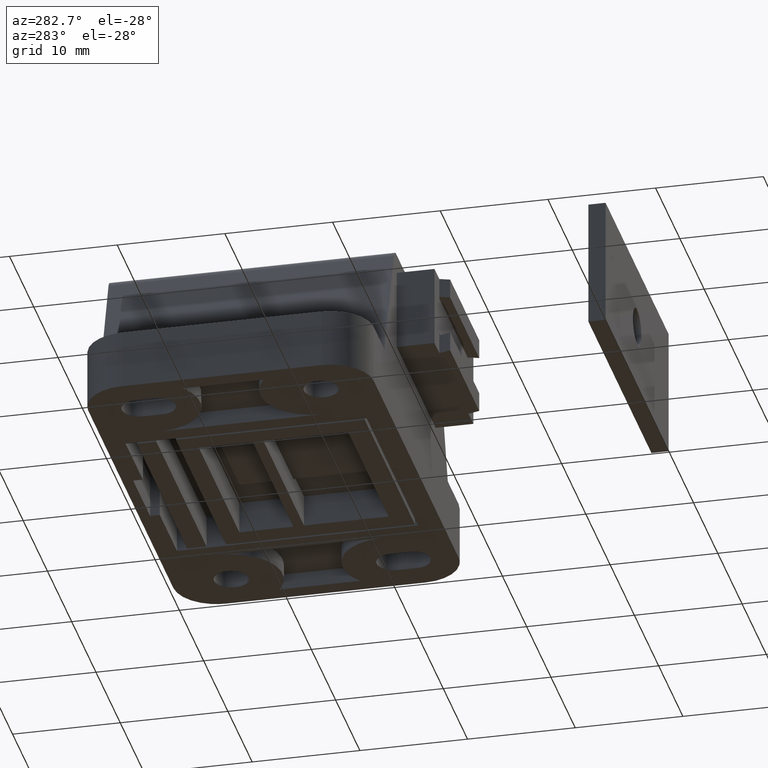
[diagram: clean part render]
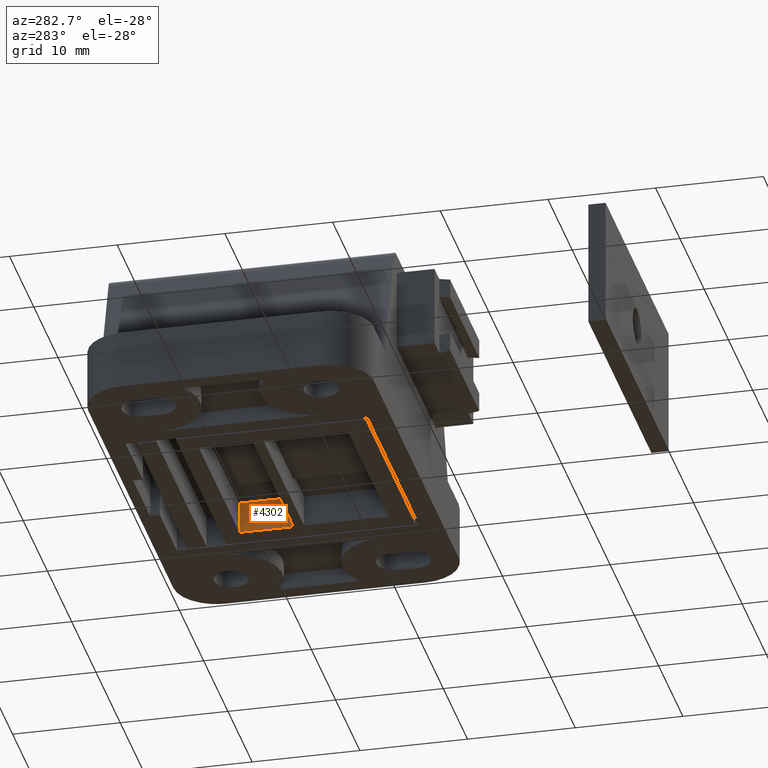
[diagram: same view with one face highlighted and labeled with its STEP entity id]
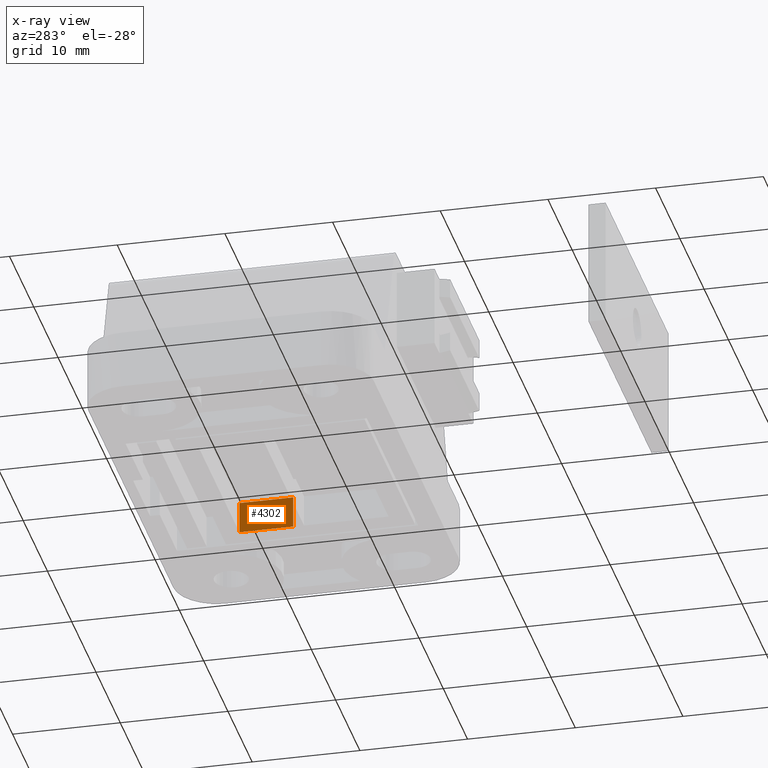
[diagram: x-ray of the same camera — body ghosted, the highlighted face saturated]
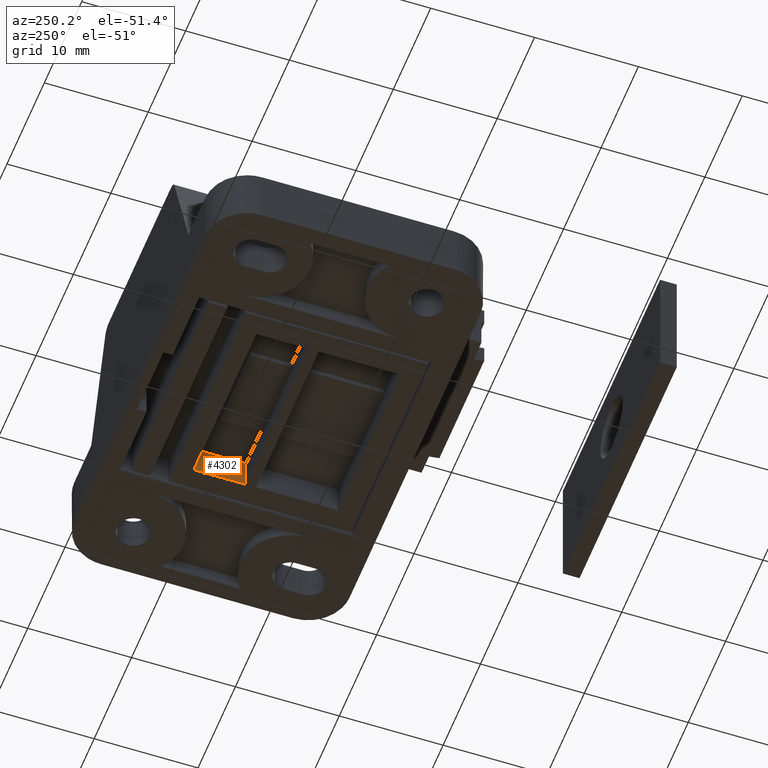
[diagram: same view with one face highlighted and labeled with its STEP entity id]
A machine part, auxiliary view. The second image highlights one B-rep face of the part: STEP entity #4302.
The next image is the same camera in x-ray: the body ghosted, the highlighted face saturated — about 0% of this face is hidden behind the body in this view.
A second angle (auxiliary view) of the same face is appended — the face is thin or edge-on in the first view.
In plain terms, the highlighted face is a freeform B-spline surface patch.
Its self-contained STEP definition (entity closure, byte-faithful):
#4208=CARTESIAN_POINT('',(8.350002999999999,-8.200001000000000,3.0));
#4209=VERTEX_POINT('',#4208);
#4215=CARTESIAN_POINT('',(8.350002999999999,-13.200001000000020,3.0));
#4216=VERTEX_POINT('',#4215);
#4217=CARTESIAN_POINT('',(8.350002999999999,-13.200001000000020,3.0));
#4218=CARTESIAN_POINT('',(8.350002999999999,-8.200001000000000,3.0));
#4219=QUASI_UNIFORM_CURVE('',1,(#4217,#4218),.UNSPECIFIED.,.F.,.U.);
#4220=EDGE_CURVE('',#4216,#4209,#4219,.T.);
#4264=CARTESIAN_POINT('',(8.350002999999999,-8.200001000000000,0.0));
#4265=VERTEX_POINT('',#4264);
#4271=CARTESIAN_POINT('',(8.350002999999999,-8.200001000000000,3.0));
#4272=CARTESIAN_POINT('',(8.350002999999999,-8.200001000000000,0.0));
#4273=QUASI_UNIFORM_CURVE('',1,(#4271,#4272),.UNSPECIFIED.,.F.,.U.);
#4274=EDGE_CURVE('',#4209,#4265,#4273,.T.);
#4281=CARTESIAN_POINT('',(8.350002999999999,-13.449750990309051,-0.149849994185418));
#4282=CARTESIAN_POINT('',(8.350002999999999,-13.449750990309051,3.149850074651689));
#4283=CARTESIAN_POINT('',(8.350002999999999,-7.950250875580519,-0.149849994185418));
#4284=CARTESIAN_POINT('',(8.350002999999999,-7.950250875580519,3.149850074651689));
#4285=B_SPLINE_SURFACE_WITH_KNOTS('',1,1,((#4281,#4283),(#4282,#4284)),.UNSPECIFIED.,.F.,.F.,.U.,(2,2),(2,2),(0.0,3.299700068837106),(0.0,5.499500114728532),.UNSPECIFIED.);
#4286=CARTESIAN_POINT('',(8.350002999999999,-13.200001000000020,0.0));
#4287=VERTEX_POINT('',#4286);
#4288=CARTESIAN_POINT('',(8.350002999999999,-13.200001000000020,0.0));
#4289=CARTESIAN_POINT('',(8.350002999999999,-8.200001000000000,0.0));
#4290=QUASI_UNIFORM_CURVE('',1,(#4288,#4289),.UNSPECIFIED.,.F.,.U.);
#4291=EDGE_CURVE('',#4287,#4265,#4290,.T.);
#4292=ORIENTED_EDGE('',*,*,#4291,.F.);
#4293=CARTESIAN_POINT('',(8.350002999999999,-13.200001000000020,3.0));
#4294=CARTESIAN_POINT('',(8.350002999999999,-13.200001000000020,0.0));
#4295=QUASI_UNIFORM_CURVE('',1,(#4293,#4294),.UNSPECIFIED.,.F.,.U.);
#4296=EDGE_CURVE('',#4216,#4287,#4295,.T.);
#4297=ORIENTED_EDGE('',*,*,#4296,.F.);
#4298=ORIENTED_EDGE('',*,*,#4220,.T.);
#4299=ORIENTED_EDGE('',*,*,#4274,.T.);
#4300=EDGE_LOOP('',(#4292,#4297,#4298,#4299));
#4301=FACE_OUTER_BOUND('',#4300,.T.);
#4302=ADVANCED_FACE('',(#4301),#4285,.T.);